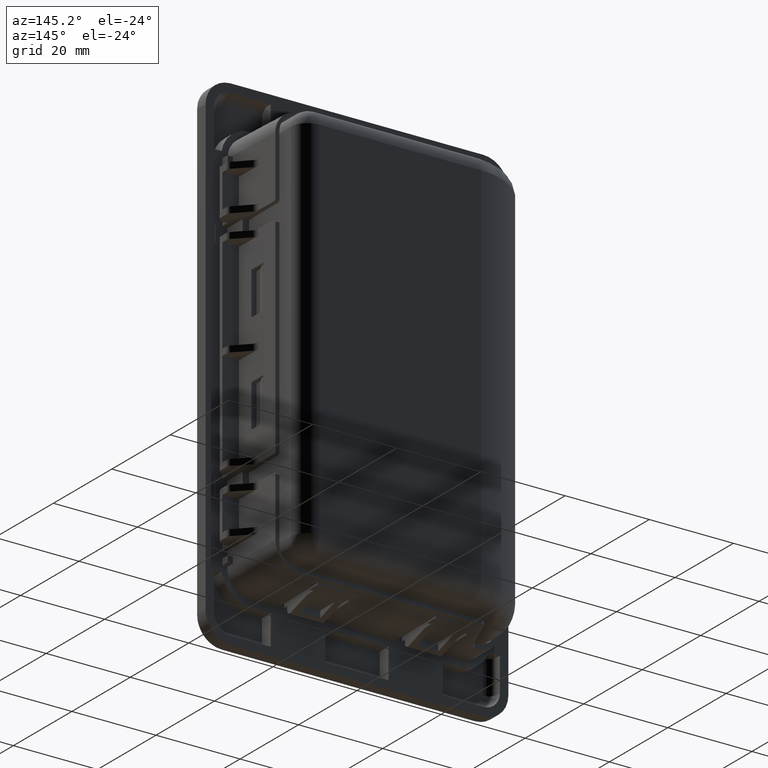
[diagram: clean part render]
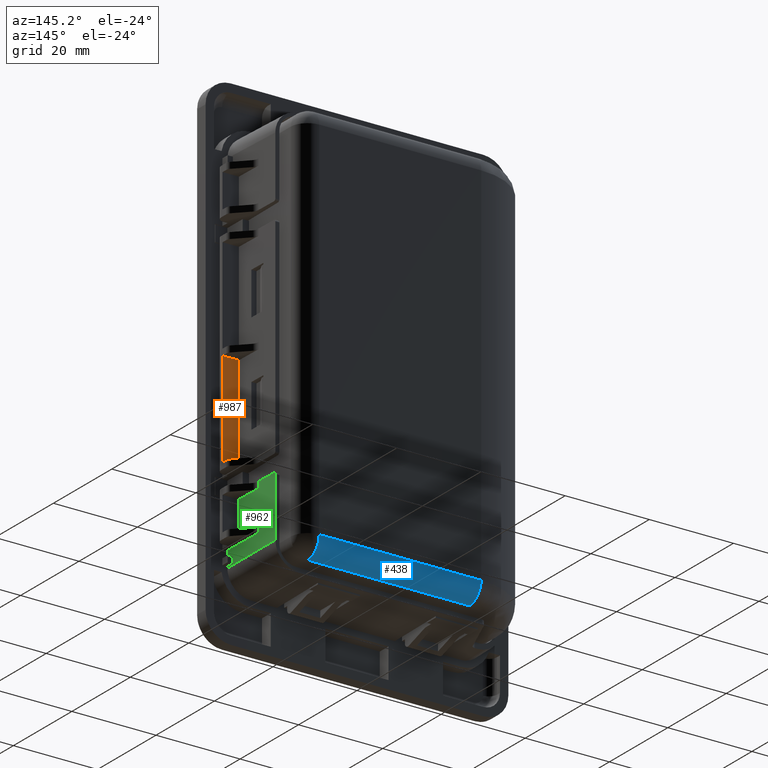
[diagram: same view with three faces highlighted in distinct colors, each labeled with its STEP entity id]
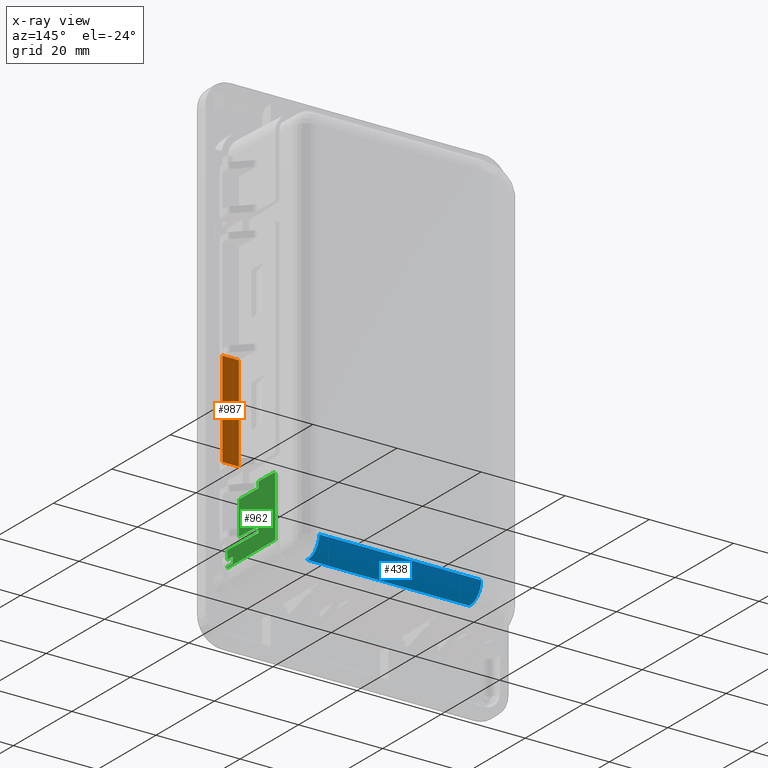
[diagram: x-ray of the same camera — body ghosted, the three highlighted faces saturated]
A machine part, auxiliary view with three faces highlighted in distinct colors.
The next image is the same camera in x-ray (body ghosted, the three faces saturated) — at least one of them is partly hidden behind the body in this view.
Their STEP definitions:

[orange] entity #987 — the highlighted planar face has unit normal (0, -1, 0).
#987=ADVANCED_FACE('',(#10526),#10525,.F.);
#10525=PLANE('',#18741);
#10526=FACE_OUTER_BOUND('',#18742,.T.);
#18738=CARTESIAN_POINT('',(3.03470378292E+001,3.79999999999E+000,1.52500000000E+000));
#18739=DIRECTION('',(0.00000000000E+000,-1.00000000000E+000,0.00000000000E+000));
#18740=DIRECTION('',(0.00000000000E+000,0.00000000000E+000,-1.00000000000E+000));
#18741=AXIS2_PLACEMENT_3D('',#18738,#18739,#18740);
#18742=EDGE_LOOP('',(#23541,#23542,#23543,#23544));
#23541=ORIENTED_EDGE('',*,*,#25889,.T.);
#23542=ORIENTED_EDGE('',*,*,#24860,.F.);
#23543=ORIENTED_EDGE('',*,*,#25033,.T.);
#23544=ORIENTED_EDGE('',*,*,#24853,.F.);
#24853=EDGE_CURVE('',#34165,#34166,#34167,.T.);
#24860=EDGE_CURVE('',#34208,#34215,#34216,.T.);
#25033=EDGE_CURVE('',#34208,#34166,#35386,.T.);
#25889=EDGE_CURVE('',#34165,#34215,#40815,.T.);
#34165=VERTEX_POINT('',#46651);
#34166=VERTEX_POINT('',#46652);
#34167=LINE('',#46653,#46654);
#34208=VERTEX_POINT('',#46678);
#34215=VERTEX_POINT('',#46682);
#34216=LINE('',#46683,#46684);
#35386=LINE('',#47359,#47360);
#40815=LINE('',#50700,#50701);
#46651=CARTESIAN_POINT('',(3.45999999996E+001,3.79999999999E+000,-7.50000000000E-001));
#46652=CARTESIAN_POINT('',(3.07336707538E+001,3.79999999999E+000,-7.50000000011E-001));
#46653=CARTESIAN_POINT('',(3.45999999996E+001,3.79999999999E+000,-7.50000000000E-001));
#46654=VECTOR('',#46655,3.86632924586E+000);
#46655=DIRECTION('',(-1.00000000000E+000,0.00000000000E+000,0.00000000000E+000));
#46678=CARTESIAN_POINT('',(3.07336707538E+001,3.79999999999E+000,-2.35000000000E+001));
#46682=CARTESIAN_POINT('',(3.45999999996E+001,3.79999999999E+000,-2.35000000000E+001));
#46683=CARTESIAN_POINT('',(3.07336707538E+001,3.79999999999E+000,-2.35000000000E+001));
#46684=VECTOR('',#46685,3.86632924586E+000);
#46685=DIRECTION('',(1.00000000000E+000,0.00000000000E+000,0.00000000000E+000));
#47359=CARTESIAN_POINT('',(3.07336707538E+001,3.79999999999E+000,-2.35000000000E+001));
#47360=VECTOR('',#47361,2.27500000000E+001);
#47361=DIRECTION('',(0.00000000000E+000,0.00000000000E+000,1.00000000000E+000));
#50700=CARTESIAN_POINT('',(3.45999999996E+001,3.79999999999E+000,-7.50000000000E-001));
#50701=VECTOR('',#50702,2.27500000000E+001);
#50702=DIRECTION('',(0.00000000000E+000,0.00000000000E+000,-1.00000000000E+000));

[blue] entity #438 — the highlighted cylindrical surface (edge-blend (fillet) strip) has radius 4 mm, axis along (1, -0, -0).
#438=ADVANCED_FACE('',(#5026),#5025,.T.);
#5025=CYLINDRICAL_SURFACE('',#12987,4.00000000000E+000);
#5026=FACE_OUTER_BOUND('',#12988,.T.);
#12984=CARTESIAN_POINT('',(2.93000000004E+001,1.95000000000E+001,-4.37999999999E+001));
#12985=DIRECTION('',(1.00000000000E+000,-0.00000000000E+000,-0.00000000000E+000));
#12986=DIRECTION('',(-0.00000000000E+000,-0.00000000000E+000,-1.00000000000E+000));
#12987=AXIS2_PLACEMENT_3D('',#12984,#12985,#12986);
#12988=EDGE_LOOP('',(#21020,#21021,#21022,#21023));
#21020=ORIENTED_EDGE('',*,*,#25312,.T.);
#21021=ORIENTED_EDGE('',*,*,#25257,.F.);
#21022=ORIENTED_EDGE('',*,*,#25313,.F.);
#21023=ORIENTED_EDGE('',*,*,#25288,.F.);
#25257=EDGE_CURVE('',#36874,#36861,#36881,.T.);
#25288=EDGE_CURVE('',#37083,#37090,#37091,.T.);
#25312=EDGE_CURVE('',#37083,#36861,#37254,.T.);
#25313=EDGE_CURVE('',#37090,#36874,#37260,.T.);
#36861=VERTEX_POINT('',#48282);
#36874=VERTEX_POINT('',#48290);
#36881=LINE('',#48294,#48295);
#37083=VERTEX_POINT('',#48402);
#37090=VERTEX_POINT('',#48407);
#37091=LINE('',#48408,#48409);
#37254=CIRCLE('',#48498,4.00000000000E+000);
#37260=CIRCLE('',#48502,4.00000000000E+000);
#48282=CARTESIAN_POINT('',(-1.31999999998E+001,2.35000000000E+001,-4.37999999999E+001));
#48290=CARTESIAN_POINT('',(2.53000000004E+001,2.35000000000E+001,-4.37999999999E+001));
#48294=CARTESIAN_POINT('',(2.53000000004E+001,2.35000000000E+001,-4.37999999999E+001));
#48295=VECTOR('',#48296,3.85000000001E+001);
#48296=DIRECTION('',(-1.00000000000E+000,0.00000000000E+000,0.00000000000E+000));
#48402=CARTESIAN_POINT('',(-1.31999999998E+001,1.95000000000E+001,-4.77999999999E+001));
#48407=CARTESIAN_POINT('',(2.53000000004E+001,1.95000000000E+001,-4.77999999999E+001));
#48408=CARTESIAN_POINT('',(-1.31999999998E+001,1.95000000000E+001,-4.77999999999E+001));
#48409=VECTOR('',#48410,3.85000000001E+001);
#48410=DIRECTION('',(1.00000000000E+000,0.00000000000E+000,0.00000000000E+000));
#48495=CARTESIAN_POINT('',(-1.31999999998E+001,1.95000000000E+001,-4.37999999999E+001));
#48496=DIRECTION('',(1.00000000000E+000,0.00000000000E+000,0.00000000000E+000));
#48497=DIRECTION('',(-0.00000000000E+000,-0.00000000000E+000,1.00000000000E+000));
#48498=AXIS2_PLACEMENT_3D('',#48495,#48496,#48497);
#48499=CARTESIAN_POINT('',(2.53000000004E+001,1.95000000000E+001,-4.37999999999E+001));
#48500=DIRECTION('',(1.00000000000E+000,0.00000000000E+000,0.00000000000E+000));
#48501=DIRECTION('',(-0.00000000000E+000,-0.00000000000E+000,1.00000000000E+000));
#48502=AXIS2_PLACEMENT_3D('',#48499,#48500,#48501);

[green] entity #962 — the highlighted planar face has unit normal (0.9998, 0.0175, 0).
#962=ADVANCED_FACE('',(#10267),#10266,.T.);
#10266=PLANE('',#18607);
#10267=FACE_OUTER_BOUND('',#18608,.T.);
#18604=CARTESIAN_POINT('',(3.08279281044E+001,-1.60000000001E+000,-4.52809214444E+001));
#18605=DIRECTION('',(9.99847695156E-001,1.74524064373E-002,0.00000000000E+000));
#18606=DIRECTION('',(-1.74524064373E-002,9.99847695156E-001,0.00000000000E+000));
#18607=AXIS2_PLACEMENT_3D('',#18604,#18605,#18606);
#18608=EDGE_LOOP('',(#23176,#23177,#23178,#23179,#23180,#23181,#23182,#23183,#23184,#23185,#23186,#23187,#23188,#23189,#23190));
#23176=ORIENTED_EDGE('',*,*,#24866,.F.);
#23177=ORIENTED_EDGE('',*,*,#25970,.T.);
#23178=ORIENTED_EDGE('',*,*,#24880,.F.);
#23179=ORIENTED_EDGE('',*,*,#25911,.T.);
#23180=ORIENTED_EDGE('',*,*,#24871,.F.);
#23181=ORIENTED_EDGE('',*,*,#25971,.T.);
#23182=ORIENTED_EDGE('',*,*,#24736,.T.);
#23183=ORIENTED_EDGE('',*,*,#24742,.F.);
#23184=ORIENTED_EDGE('',*,*,#24739,.T.);
#23185=ORIENTED_EDGE('',*,*,#25972,.T.);
#23186=ORIENTED_EDGE('',*,*,#25486,.T.);
#23187=ORIENTED_EDGE('',*,*,#25973,.F.);
#23188=ORIENTED_EDGE('',*,*,#25537,.T.);
#23189=ORIENTED_EDGE('',*,*,#24941,.T.);
#23190=ORIENTED_EDGE('',*,*,#25910,.T.);
#24736=EDGE_CURVE('',#33382,#33383,#33384,.T.);
#24739=EDGE_CURVE('',#33402,#33403,#33404,.T.);
#24742=EDGE_CURVE('',#33402,#33383,#33422,.T.);
#24866=EDGE_CURVE('',#34250,#34257,#34258,.T.);
#24871=EDGE_CURVE('',#34291,#34292,#34293,.T.);
#24880=EDGE_CURVE('',#34354,#34355,#34356,.T.);
#24941=EDGE_CURVE('',#34695,#34765,#34772,.T.);
#25486=EDGE_CURVE('',#38370,#38363,#38371,.T.);
#25537=EDGE_CURVE('',#38697,#34695,#38698,.T.);
#25910=EDGE_CURVE('',#34765,#34257,#40943,.T.);
#25911=EDGE_CURVE('',#34354,#34292,#40949,.T.);
#25970=EDGE_CURVE('',#34250,#34355,#41327,.T.);
#25971=EDGE_CURVE('',#34291,#33382,#41333,.T.);
#25972=EDGE_CURVE('',#33403,#38370,#41339,.T.);
#25973=EDGE_CURVE('',#38697,#38363,#41345,.T.);
#33382=VERTEX_POINT('',#46196);
#33383=VERTEX_POINT('',#46197);
#33384=LINE('',#46198,#46199);
#33402=VERTEX_POINT('',#46207);
#33403=VERTEX_POINT('',#46208);
#33404=LINE('',#46209,#46210);
#33422=LINE('',#46218,#46219);
#34250=VERTEX_POINT('',#46704);
#34257=VERTEX_POINT('',#46708);
#34258=LINE('',#46709,#46710);
#34291=VERTEX_POINT('',#46729);
#34292=VERTEX_POINT('',#46730);
#34293=LINE('',#46731,#46732);
#34354=VERTEX_POINT('',#46768);
#34355=VERTEX_POINT('',#46769);
#34356=LINE('',#46770,#46771);
#34695=VERTEX_POINT('',#46964);
#34765=VERTEX_POINT('',#47006);
#34772=LINE('',#47011,#47012);
#38363=VERTEX_POINT('',#49104);
#38370=VERTEX_POINT('',#49108);
#38371=LINE('',#49109,#49110);
#38697=VERTEX_POINT('',#49296);
#38698=(BOUNDED_CURVE() B_SPLINE_CURVE(2,(#49297,#49298,#49299),.UNSPECIFIED.,.F.,.F.) B_SPLINE_CURVE_WITH_KNOTS((3,3),(0.00000000000E+000,1.57079632679E+000),.UNSPECIFIED.) CURVE() GEOMETRIC_REPRESENTATION_ITEM() RATIONAL_B_SPLINE_CURVE((1.00000000000E+000,7.07106781187E-001,1.00000000000E+000)) REPRESENTATION_ITEM('') );
#40943=LINE('',#50767,#50768);
#40949=LINE('',#50770,#50771);
#41327=LINE('',#50977,#50978);
#41333=LINE('',#50980,#50981);
#41339=LINE('',#50983,#50984);
#41345=LINE('',#50986,#50987);
#46196=CARTESIAN_POINT('',(3.08000000006E+001,4.70734562441E-011,-4.20000000000E+001));
#46197=CARTESIAN_POINT('',(3.07685808836E+001,1.80000000002E+000,-4.20000000000E+001));
#46198=CARTESIAN_POINT('',(3.08000000005E+001,4.46846000147E-011,-4.20000000000E+001));
#46199=VECTOR('',#46200,1.80027419045E+000);
#46200=DIRECTION('',(-1.74524064373E-002,9.99847695156E-001,0.00000000000E+000));
#46207=CARTESIAN_POINT('',(3.07685808836E+001,1.80000000002E+000,-4.35000000000E+001));
#46208=CARTESIAN_POINT('',(3.08000000006E+001,4.70734562441E-011,-4.35000000000E+001));
#46209=CARTESIAN_POINT('',(3.07685808836E+001,1.80000000002E+000,-4.35000000000E+001));
#46210=VECTOR('',#46211,1.80027419045E+000);
#46211=DIRECTION('',(1.74524064373E-002,-9.99847695156E-001,0.00000000000E+000));
#46218=CARTESIAN_POINT('',(3.07685808836E+001,1.80000000002E+000,-4.35000000000E+001));
#46219=VECTOR('',#46220,1.50000000000E+000);
#46220=DIRECTION('',(0.00000000000E+000,0.00000000000E+000,1.00000000000E+000));
#46704=CARTESIAN_POINT('',(3.07336707538E+001,3.79999999999E+000,-3.05000000000E+001));
#46708=CARTESIAN_POINT('',(3.06189050659E+001,1.03749218553E+001,-3.05000000000E+001));
#46709=CARTESIAN_POINT('',(3.07336707538E+001,3.79999999999E+000,-3.05000000000E+001));
#46710=VECTOR('',#46711,6.57592340028E+000);
#46711=DIRECTION('',(-1.74524064373E-002,9.99847695156E-001,0.00000000000E+000));
#46729=CARTESIAN_POINT('',(3.08000000006E+001,-1.19938781129E-011,-4.00000000000E+001));
#46730=CARTESIAN_POINT('',(3.06189050659E+001,1.03749218553E+001,-4.00000000000E+001));
#46731=CARTESIAN_POINT('',(3.08000000005E+001,-1.42527819612E-011,-4.00000000000E+001));
#46732=VECTOR('',#46733,1.03765022469E+001);
#46733=DIRECTION('',(-1.74524064373E-002,9.99847695156E-001,0.00000000000E+000));
#46768=CARTESIAN_POINT('',(3.06189050659E+001,1.03749218553E+001,-3.85000000000E+001));
#46769=CARTESIAN_POINT('',(3.07336707538E+001,3.79999999999E+000,-3.85000000000E+001));
#46770=CARTESIAN_POINT('',(3.06189050659E+001,1.03749218553E+001,-3.85000000000E+001));
#46771=VECTOR('',#46772,6.57592340028E+000);
#46772=DIRECTION('',(1.74524064373E-002,-9.99847695156E-001,0.00000000000E+000));
#46964=CARTESIAN_POINT('',(3.05294464941E+001,1.55000000000E+001,-2.89999999995E+001));
#47006=CARTESIAN_POINT('',(3.06189050659E+001,1.03749218553E+001,-2.89999999995E+001));
#47011=CARTESIAN_POINT('',(3.05294464941E+001,1.55000000000E+001,-2.89999999995E+001));
#47012=VECTOR('',#47013,5.12585883779E+000);
#47013=DIRECTION('',(1.74524064377E-002,-9.99847695156E-001,0.00000000000E+000));
#49104=CARTESIAN_POINT('',(3.05207189616E+001,1.60000000000E+001,-4.35215566379E+001));
#49108=CARTESIAN_POINT('',(3.08000000006E+001,4.70734562441E-011,-4.38008376767E+001));
#49109=CARTESIAN_POINT('',(3.08000000005E+001,4.54747350886E-011,-4.38008376767E+001));
#49110=VECTOR('',#49111,1.60048741262E+001);
#49111=DIRECTION('',(-1.74497491607E-002,9.99695459882E-001,1.74497491607E-002));
#49296=CARTESIAN_POINT('',(3.05207189616E+001,1.60000000000E+001,-2.94999999995E+001));
#49297=CARTESIAN_POINT('',(3.05207189616E+001,1.60000000000E+001,-2.94999999995E+001));
#49298=CARTESIAN_POINT('',(3.05207189616E+001,1.60000000000E+001,-2.89999999995E+001));
#49299=CARTESIAN_POINT('',(3.05294464941E+001,1.55000000000E+001,-2.89999999995E+001));
#50767=CARTESIAN_POINT('',(3.06189050659E+001,1.03749218553E+001,-2.89999999995E+001));
#50768=VECTOR('',#50769,1.50000000049E+000);
#50769=DIRECTION('',(0.00000000000E+000,0.00000000000E+000,-1.00000000000E+000));
#50770=CARTESIAN_POINT('',(3.06189050659E+001,1.03749218553E+001,-3.85000000000E+001));
#50771=VECTOR('',#50772,1.50000000000E+000);
#50772=DIRECTION('',(0.00000000000E+000,0.00000000000E+000,-1.00000000000E+000));
#50977=CARTESIAN_POINT('',(3.07336707538E+001,3.79999999999E+000,-3.05000000000E+001));
#50978=VECTOR('',#50979,8.00000000000E+000);
#50979=DIRECTION('',(0.00000000000E+000,0.00000000000E+000,-1.00000000000E+000));
#50980=CARTESIAN_POINT('',(3.08000000006E+001,4.70734562441E-011,-4.00000000000E+001));
#50981=VECTOR('',#50982,2.00000000000E+000);
#50982=DIRECTION('',(1.46727074934E-012,0.00000000000E+000,-1.00000000000E+000));
#50983=CARTESIAN_POINT('',(3.08000000006E+001,4.70734562441E-011,-4.35000000000E+001));
#50984=VECTOR('',#50985,3.00837676725E-001);
#50985=DIRECTION('',(1.46436610257E-012,0.00000000000E+000,-1.00000000000E+000));
#50986=CARTESIAN_POINT('',(3.05207189616E+001,1.60000000000E+001,-2.94999999995E+001));
#50987=VECTOR('',#50988,1.40215566384E+001);
#50988=DIRECTION('',(0.00000000000E+000,0.00000000000E+000,-1.00000000000E+000));